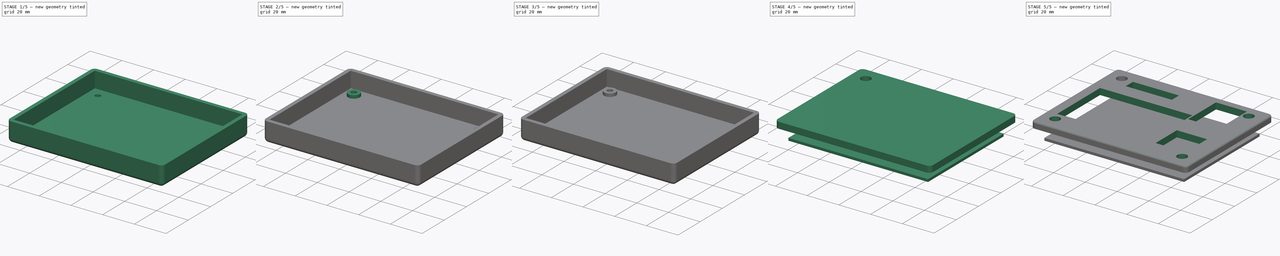
[diagram: build sequence overview — one tinted view per stage of 5, left to right]
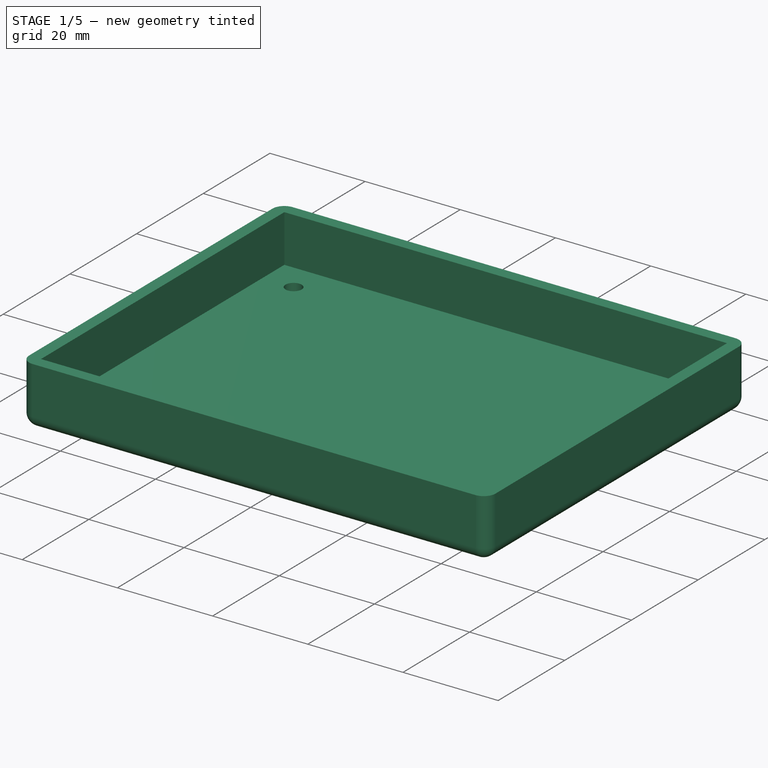
[diagram: stage 1 of 5 — iso view after this stage's code; geometry added in this stage tinted green]
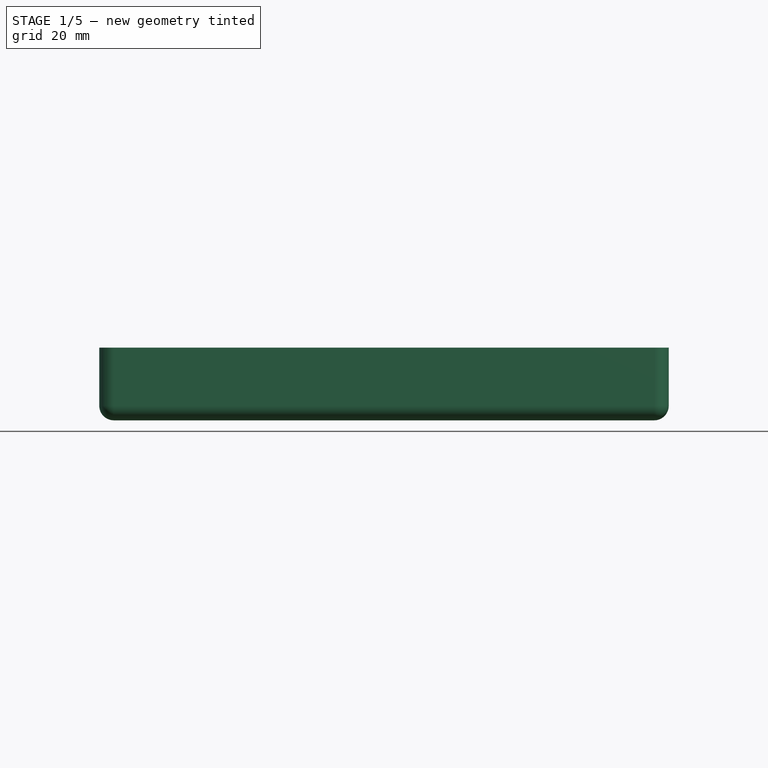
[diagram: stage 1 of 5 — front view after this stage's code; geometry added in this stage tinted green]
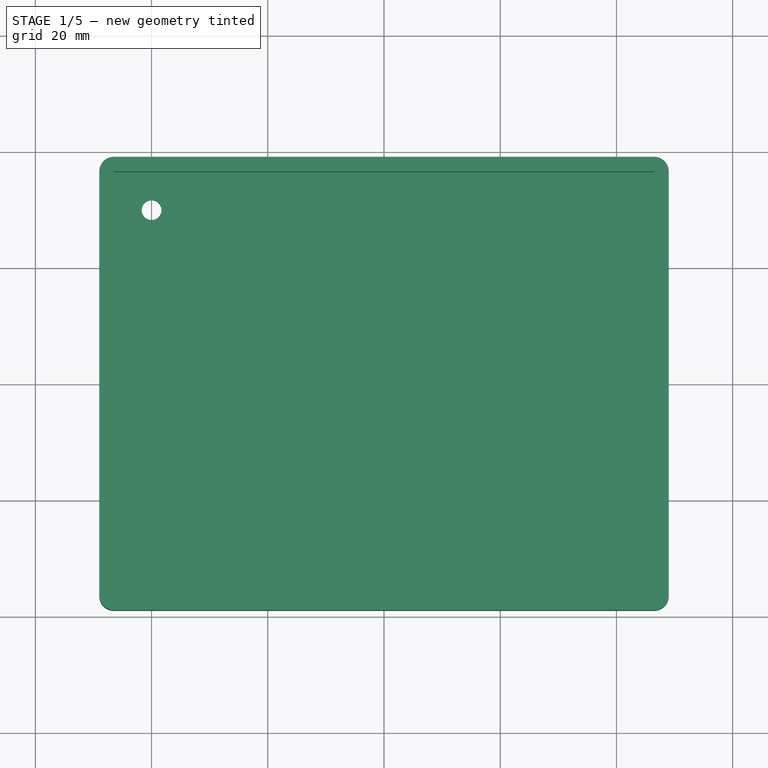
[diagram: stage 1 of 5 — top view after this stage's code; geometry added in this stage tinted green]
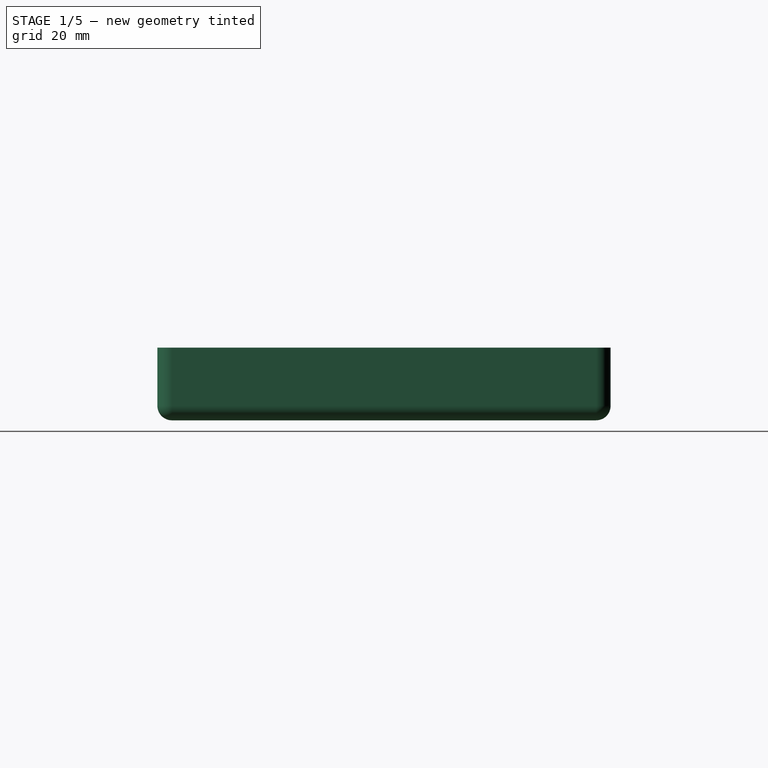
[diagram: stage 1 of 5 — right view after this stage's code; geometry added in this stage tinted green]
FCSTD DOCUMENT  (FreeCAD 0.20R)
Label: oakpad
License: All rights reserved
LicenseURL: http://en.wikipedia.org/wiki/All_rights_reserved
objects: Sketcher::SketchObject×9, PartDesign::Mirrored×8, PartDesign::Pad×5, PartDesign::MultiTransform×4, PartDesign::ShapeBinder×4, PartDesign::Body×3, PartDesign::Hole×2, PartDesign::Pocket×2, PartDesign::Thickness×1, PartDesign::Fillet×1
note: 50 computed .brp shape members not serialized (recipe doc carries the construction recipe); baked Part::Feature solids carry a one-line shape summary decoded from their .brp

FEATURE [Sketcher::SketchObject] Sketch
  FullyConstrained = true
  MapMode = 5
  Support = -> [XY_Plane]
  sketch-geometry (4):
    g0: LineSegment StartX=-44 StartY=34 StartZ=0 EndX=44 EndY=34 EndZ=0
    g1: LineSegment StartX=44 StartY=34 StartZ=0 EndX=44 EndY=-34 EndZ=0
    g2: LineSegment StartX=44 StartY=-34 StartZ=0 EndX=-44 EndY=-34 EndZ=0
    g3: LineSegment StartX=-44 StartY=-34 StartZ=0 EndX=-44 EndY=34 EndZ=0
  constraints (11):
    c: Coincident(g0,g1)
    c: Coincident(g1,g2)
    c: Coincident(g2,g3)
    c: Coincident(g3,g0)
    c: Horizontal(g0)
    c: Horizontal(g2)
    c: Vertical(g1)
    c: Vertical(g3)
    c: DistanceX(g0,g0) = 88
    c: DistanceY(g3,g3) = 68
    c: Symmetric(g0,g1,g-1)
FEATURE [Sketcher::SketchObject] Sketch001
  ExternalGeometry = -> [Sketch]
  FullyConstrained = true
  MapMode = 5
  Support = -> [XY_Plane]
  sketch-geometry (4):
    g0: LineSegment StartX=-46.5 StartY=36.5 StartZ=0 EndX=46.5 EndY=36.5 EndZ=0
    g1: LineSegment StartX=46.5 StartY=36.5 StartZ=0 EndX=46.5 EndY=-36.5 EndZ=0
    g2: LineSegment StartX=46.5 StartY=-36.5 StartZ=0 EndX=-46.5 EndY=-36.5 EndZ=0
    g3: LineSegment StartX=-46.5 StartY=-36.5 StartZ=0 EndX=-46.5 EndY=36.5 EndZ=0
  constraints (11):
    c: Coincident(g0,g1)
    c: Coincident(g1,g2)
    c: Coincident(g2,g3)
    c: Coincident(g3,g0)
    c: Horizontal(g0)
    c: Horizontal(g2)
    c: Vertical(g1)
    c: Vertical(g3)
    c: DistanceY(g-4,g0) = 2.5
    c: DistanceX(g2,g-6) = 2.5
    c: Symmetric(g0,g1,g-1)
FEATURE [PartDesign::Pad] Pad
  Direction = (0,0,1)
  Length = 10
  Length2 = 10
  Profile = -> Sketch001
  ReferenceAxis = -> Sketch001 [N_Axis]
  Type = 0
FEATURE [PartDesign::Thickness] Thickness
  Base = -> Pad [Face6]
  BaseFeature = -> Pad
  Intersection = false
  Join = 0
  Mode = 0
  SupportTransform = false
  Value = 2.5
FEATURE [Sketcher::SketchObject] Sketch002
  ExternalGeometry = -> [Sketch]
  FullyConstrained = true
  MapMode = 5
  Support = -> [XY_Plane]
  sketch-geometry (2):
    g0: Circle CenterX=-40 CenterY=30 CenterZ=0 NormalX=0 NormalY=0 NormalZ=1 AngleXU=0 Radius=1
    g1: GeomPoint X=-40 Y=30 Z=0
  constraints (4):
    c: Diameter(g0) = 2
    c: DistanceY(g0,g-4) = 4
    c: DistanceX(g-4,g0) = 4
    c: Coincident(g1,g0)
FEATURE [PartDesign::Hole] Hole
  BaseFeature = -> Thickness
  CustomThreadClearance = 0
  Depth = 25
  DepthType = 0
  Diameter = 3.4
  DrillForDepth = false
  DrillPoint = 1
  DrillPointAngle = 118
  HoleCutCountersinkAngle = 90
  HoleCutCustomValues = false
  HoleCutDepth = 0
  HoleCutDiameter = 6.1
  HoleCutType = 0
  ModelThread = false
  Profile = -> Sketch002
  Tapered = false
  TaperedAngle = 90
  ThreadClass = 0
  ThreadDepth = 25
  ThreadDepthType = 0
  ThreadDirection = 0
  ThreadFit = 0
  ThreadSize = 9
  ThreadType = 1
  Threaded = false
  UseCustomThreadClearance = false
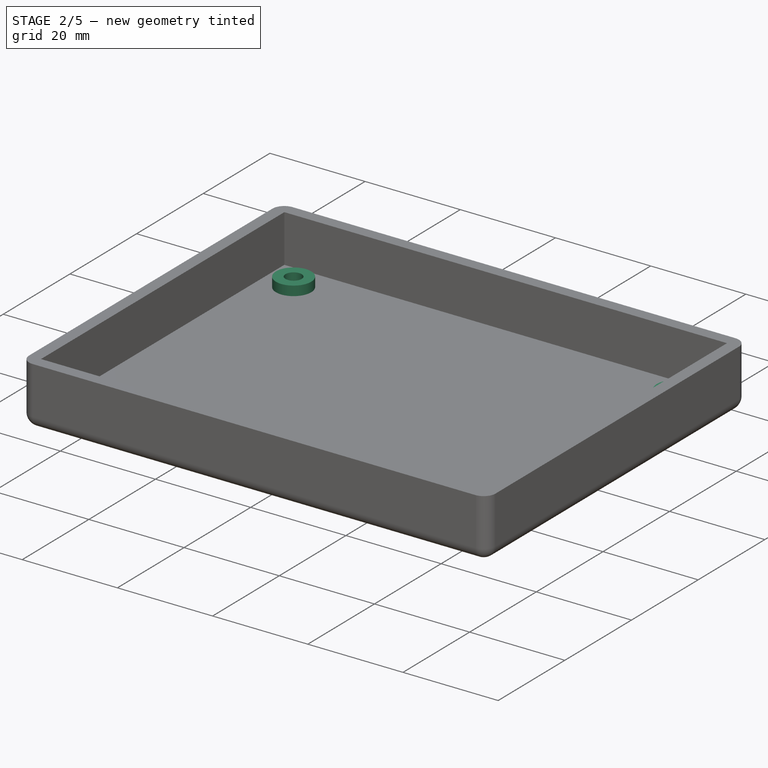
[diagram: stage 2 of 5 — iso view after this stage's code; geometry added in this stage tinted green]
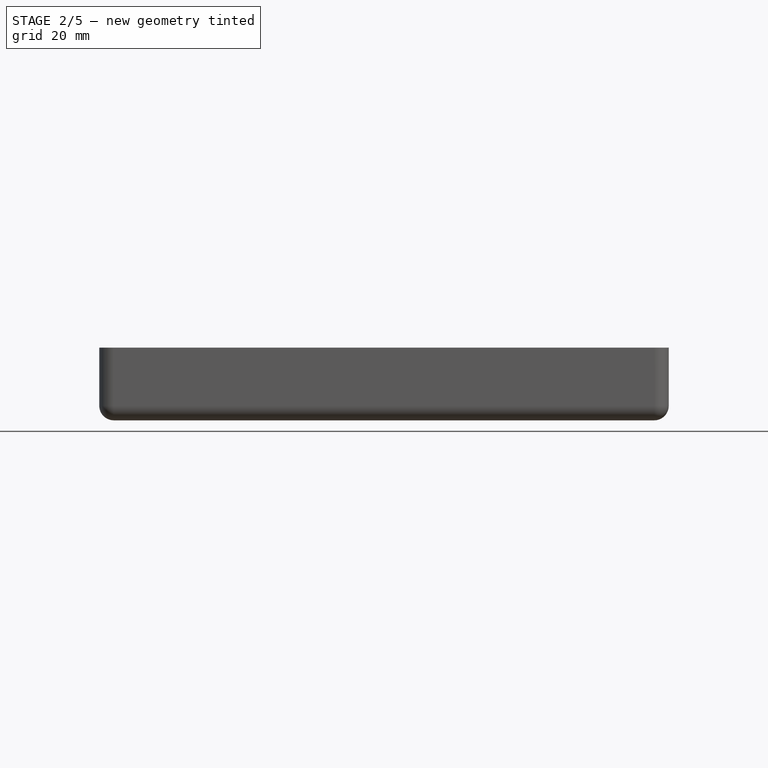
[diagram: stage 2 of 5 — front view after this stage's code; geometry added in this stage tinted green]
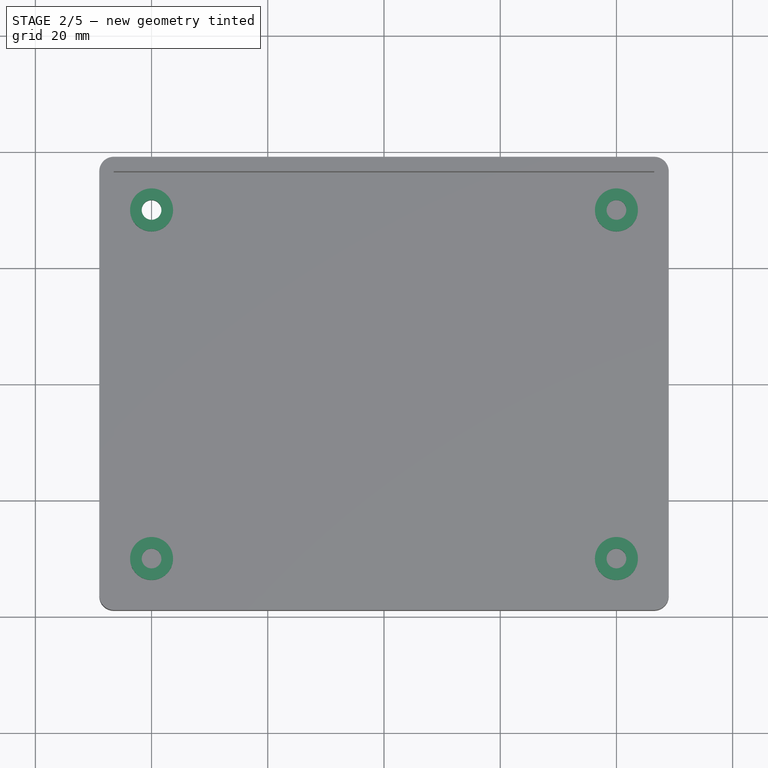
[diagram: stage 2 of 5 — top view after this stage's code; geometry added in this stage tinted green]
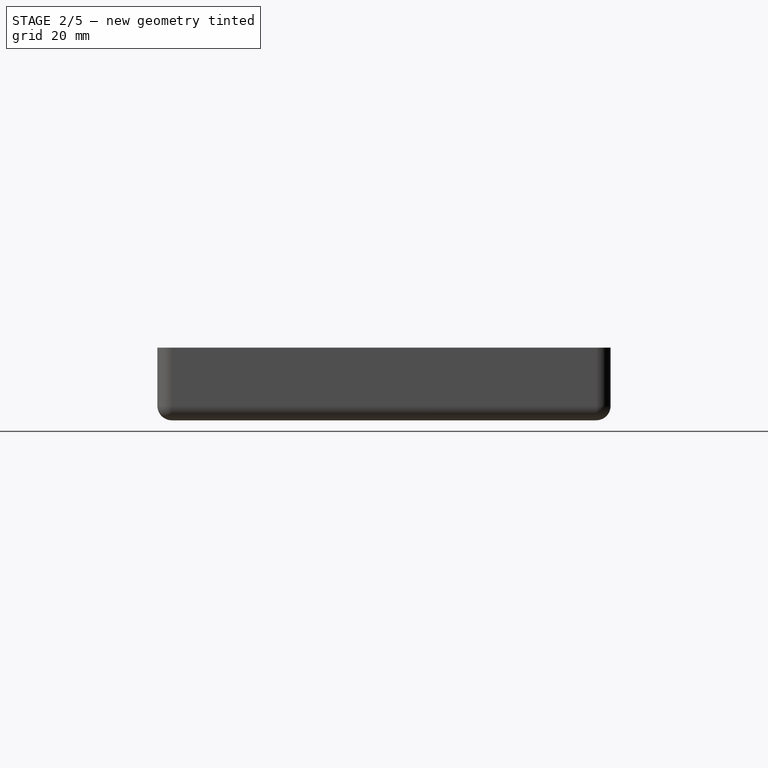
[diagram: stage 2 of 5 — right view after this stage's code; geometry added in this stage tinted green]
FEATURE [Sketcher::SketchObject] Sketch003
  ExternalGeometry = -> [Hole]
  FullyConstrained = true
  MapMode = 5
  Support = -> [XY_Plane]
  sketch-geometry (4):
    g0: Circle CenterX=-40 CenterY=30 CenterZ=0 NormalX=0 NormalY=0 NormalZ=1 AngleXU=0 Radius=3.7
    g1: Circle CenterX=-40 CenterY=30 CenterZ=0 NormalX=0 NormalY=0 NormalZ=1 AngleXU=0 Radius=1.7
    g2: GeomPoint X=-40 Y=31.7 Z=0
    g3: GeomPoint X=-40 Y=33.7 Z=0
  constraints (8):
    c: Coincident(g0,g-3)
    c: Coincident(g1,g0)
    c: Equal(g1,g-3)
    c: PointOnObject(g2,g1)
    c: PointOnObject(g3,g0)
    c: Vertical(g3,g2)
    c: Vertical(g2,g0)
    c: DistanceY(g2,g3) = 2
FEATURE [PartDesign::Pad] Pad001
  BaseFeature = -> Hole
  Direction = (0,0,1)
  Length = 2
  Length2 = 10
  Profile = -> Sketch003
  ReferenceAxis = -> Sketch003 [N_Axis]
  Type = 0
FEATURE [PartDesign::Mirrored] Mirrored
  MirrorPlane = -> Sketch003 [V_Axis]
FEATURE [PartDesign::Mirrored] Mirrored001
  MirrorPlane = -> Sketch003 [H_Axis]
FEATURE [PartDesign::MultiTransform] MultiTransform
  BaseFeature = -> Pad001
  Originals = -> [Pad001]
  Transformations = -> [Mirrored,Mirrored001]
FEATURE [Sketcher::SketchObject] Sketch005
  ExternalGeometry = -> [MultiTransform]
  FullyConstrained = true
  MapMode = 5
  Support = -> [XY_Plane]
  sketch-geometry (1):
    g0: Circle CenterX=-40 CenterY=30 CenterZ=0 NormalX=0 NormalY=0 NormalZ=1 AngleXU=0 Radius=1.7
  constraints (2):
    c: Coincident(g0,g-3)
    c: Equal(g-3,g0)
FEATURE [PartDesign::Pocket] Pocket
  BaseFeature = -> MultiTransform
  Direction = (0,0,-1)
  Length = 5
  Length2 = 5
  Profile = -> Sketch005
  ReferenceAxis = -> Sketch005 [N_Axis]
  Type = 1
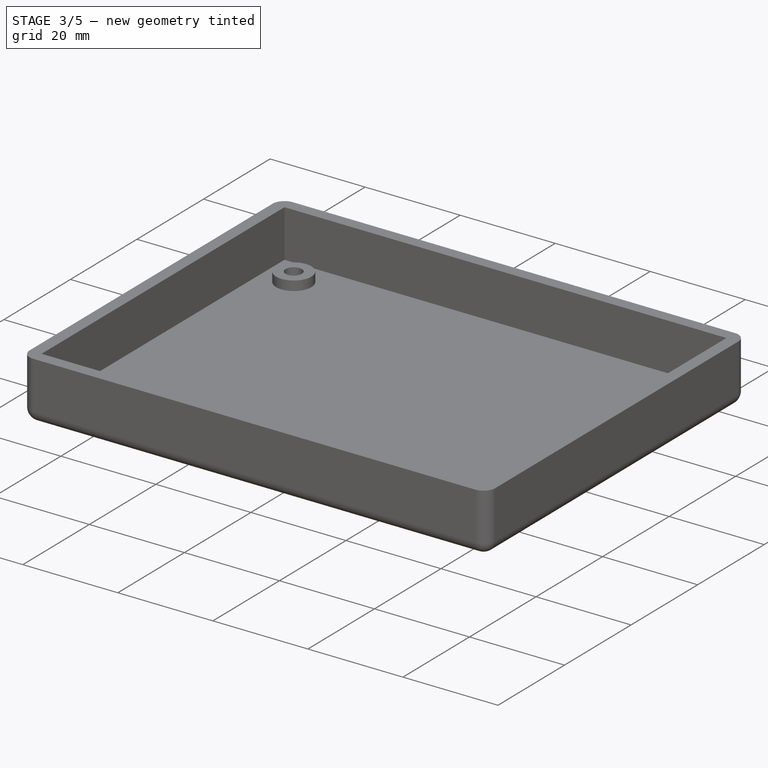
[diagram: stage 3 of 5 — iso view after this stage's code; geometry added in this stage tinted green]
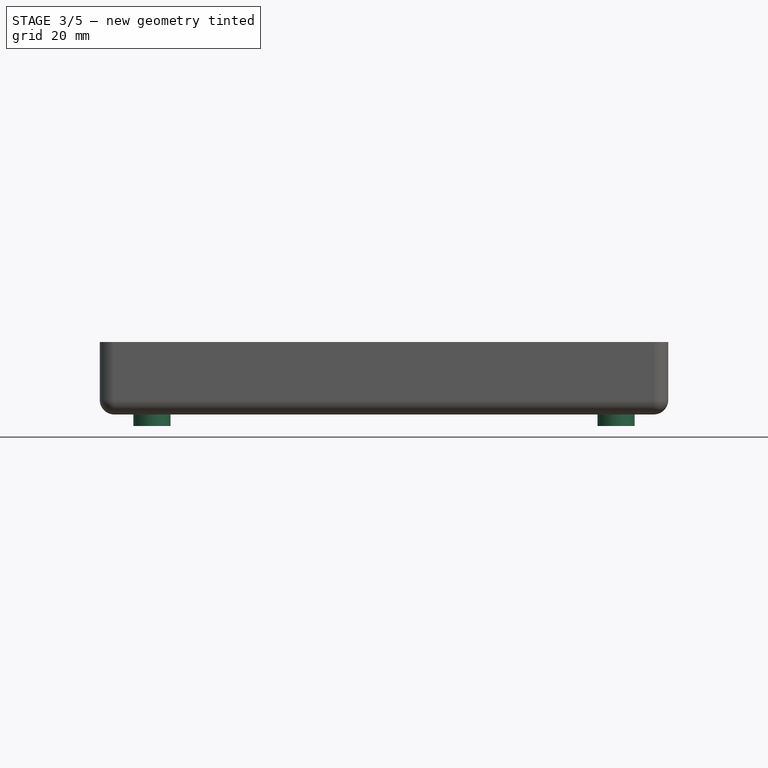
[diagram: stage 3 of 5 — front view after this stage's code; geometry added in this stage tinted green]
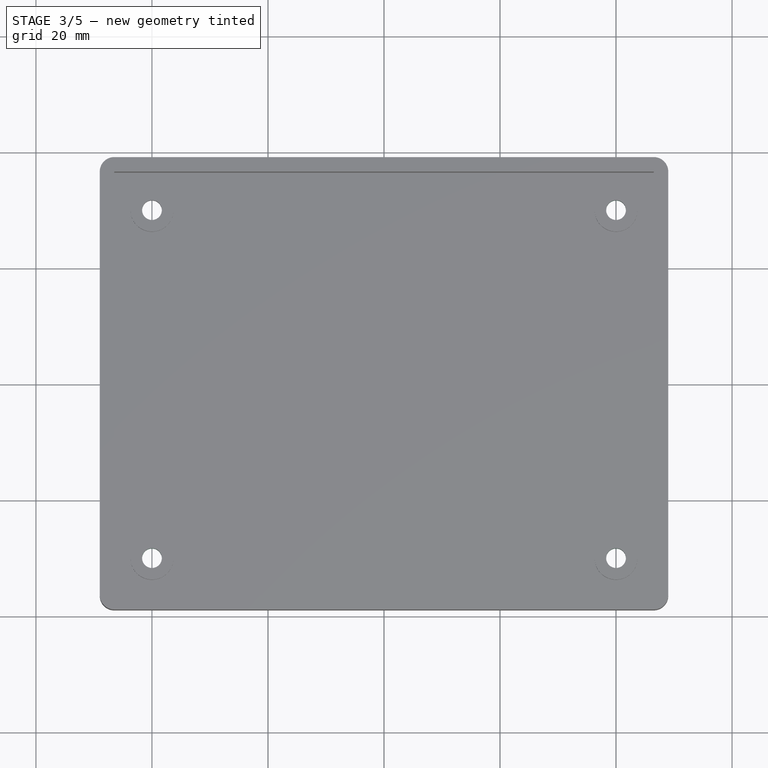
[diagram: stage 3 of 5 — top view after this stage's code; geometry added in this stage tinted green]
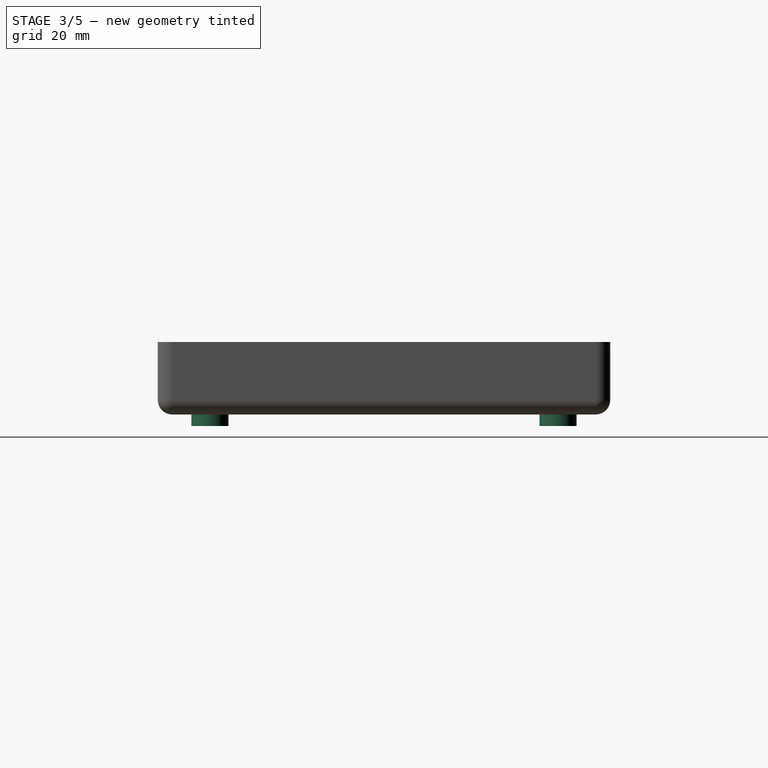
[diagram: stage 3 of 5 — right view after this stage's code; geometry added in this stage tinted green]
FEATURE [PartDesign::Mirrored] Mirrored004
  MirrorPlane = -> Sketch005 [V_Axis]
FEATURE [PartDesign::Mirrored] Mirrored005
  MirrorPlane = -> Sketch005 [H_Axis]
FEATURE [PartDesign::MultiTransform] MultiTransform002
  BaseFeature = -> Pocket
  Originals = -> [Pocket]
  Transformations = -> [Mirrored004,Mirrored005]
FEATURE [Sketcher::SketchObject] Sketch006
  ExternalGeometry = -> [MultiTransform002]
  FullyConstrained = true
  MapMode = 5
  Placement = pos=(0,0,-2.5) rot=(1,0,0;3.14159rad)
  Support = -> [MultiTransform002]
  sketch-geometry (5):
    g0: Circle CenterX=-40 CenterY=30 CenterZ=0 NormalX=0 NormalY=0 NormalZ=1 AngleXU=0 Radius=2.7
    g1: Circle CenterX=-40 CenterY=30 CenterZ=0 NormalX=0 NormalY=0 NormalZ=1 AngleXU=0 Radius=3.2
    g2: GeomPoint X=-40 Y=32.7 Z=0
    g3: GeomPoint X=-40 Y=33.2 Z=0
    g4: GeomPoint X=-40 Y=31.7 Z=0
  constraints (10):
    c: Coincident(g0,g-3)
    c: Coincident(g1,g0)
    c: PointOnObject(g2,g0)
    c: PointOnObject(g3,g1)
    c: PointOnObject(g4,g-3)
    c: Vertical(g0,g4)
    c: Vertical(g4,g2)
    c: Vertical(g2,g3)
    c: Distance(g2,g4) = 1
    c: Distance(g2,g3) = 0.5
FEATURE [PartDesign::Pad] Pad003
  BaseFeature = -> MultiTransform002
  Direction = (0,0,-1)
  Length = 2
  Length2 = 10
  Profile = -> Sketch006
  ReferenceAxis = -> Sketch006 [N_Axis]
  Type = 0
FEATURE [PartDesign::Mirrored] Mirrored006
  MirrorPlane = -> Sketch006 [V_Axis]
FEATURE [PartDesign::Mirrored] Mirrored007
  MirrorPlane = -> Sketch006 [H_Axis]
FEATURE [PartDesign::MultiTransform] MultiTransform003
  BaseFeature = -> Pad003
  Originals = -> [Pad003]
  Transformations = -> [Mirrored006,Mirrored007]
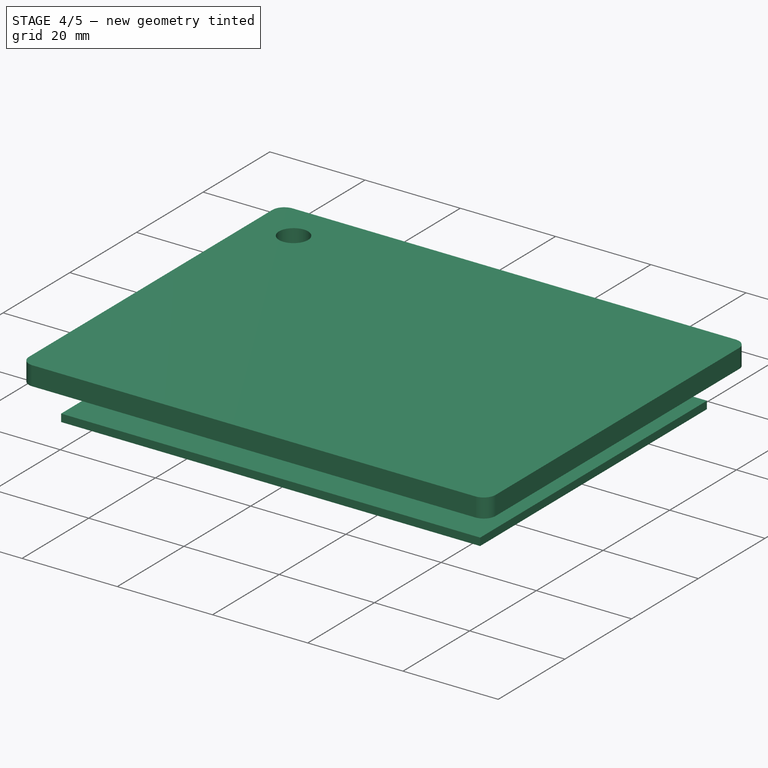
[diagram: stage 4 of 5 — iso view after this stage's code; geometry added in this stage tinted green]
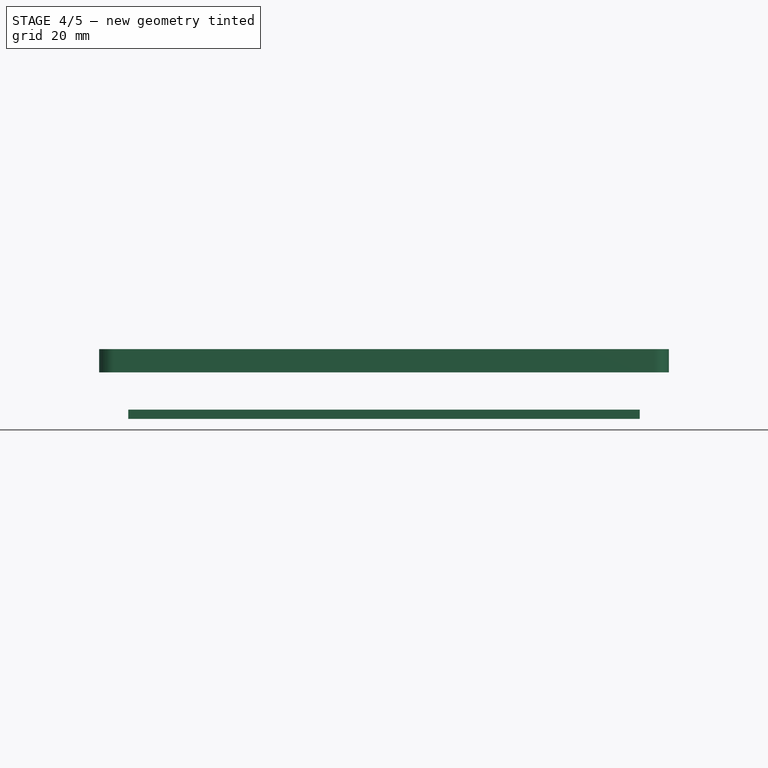
[diagram: stage 4 of 5 — front view after this stage's code; geometry added in this stage tinted green]
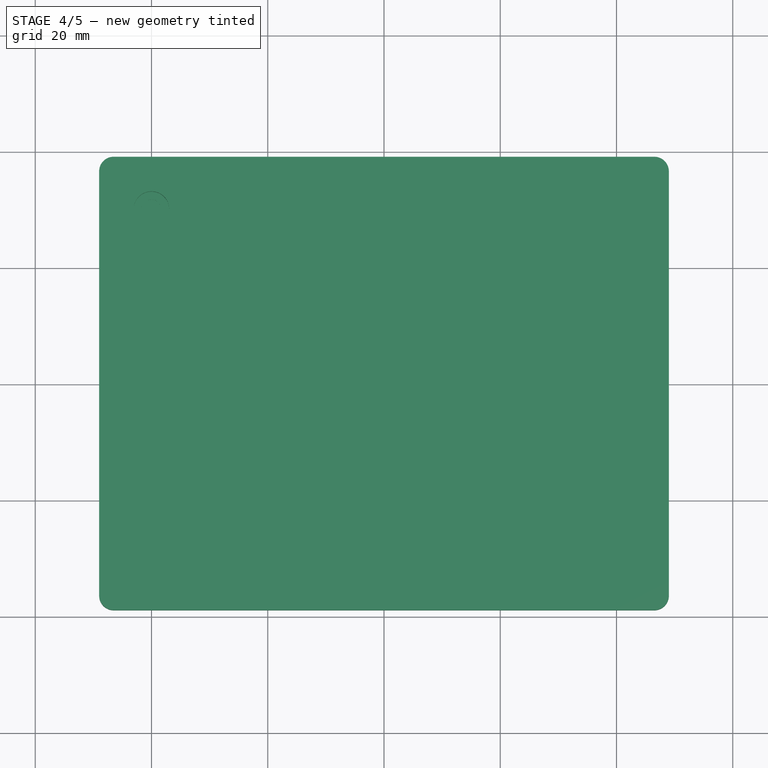
[diagram: stage 4 of 5 — top view after this stage's code; geometry added in this stage tinted green]
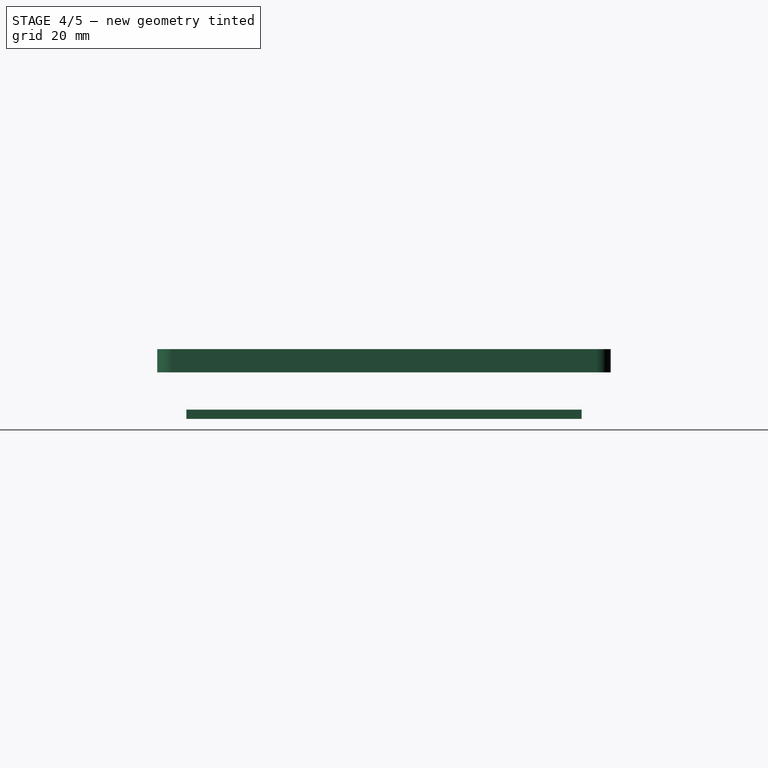
[diagram: stage 4 of 5 — right view after this stage's code; geometry added in this stage tinted green]
FEATURE [PartDesign::ShapeBinder] ShapeBinder
  Support = -> [MultiTransform]
  TraceSupport = false
FEATURE [PartDesign::Pad] Pad002
  Direction = (0,0,1)
  Length = 4
  Length2 = 10
  Profile = -> ShapeBinder
  Type = 0
FEATURE [PartDesign::ShapeBinder] ShapeBinder001
  Support = -> [Sketch]
  TraceSupport = false
FEATURE [Sketcher::SketchObject] Sketch004
  ExternalGeometry = -> [ShapeBinder001]
  FullyConstrained = false
  MapMode = 5
  Placement = pos=(0,0,14) rot=(0,0,1;0rad)
  Support = -> [Pad002]
  sketch-geometry (1):
    g0: Circle CenterX=-40 CenterY=30 CenterZ=0 NormalX=0 NormalY=0 NormalZ=1 AngleXU=0 Radius=2.27254
  constraints (2):
    c: DistanceY(g0,g-4) = 4
    c: DistanceX(g-4,g0) = 4
FEATURE [PartDesign::Hole] Hole001
  BaseFeature = -> Pad002
  CustomThreadClearance = 0
  Depth = 244.629
  DepthType = 1
  Diameter = 3.4
  DrillForDepth = false
  DrillPoint = 0
  DrillPointAngle = 118
  HoleCutCountersinkAngle = 90
  HoleCutCustomValues = false
  HoleCutDepth = 3.4
  HoleCutDiameter = 6.1
  HoleCutType = 1
  ModelThread = false
  Profile = -> Sketch004
  Tapered = false
  TaperedAngle = 90
  ThreadClass = 0
  ThreadDepth = 244.629
  ThreadDepthType = 0
  ThreadDirection = 0
  ThreadFit = 0
  ThreadSize = 9
  ThreadType = 1
  Threaded = false
  UseCustomThreadClearance = false
FEATURE [PartDesign::Body] Body001  label="Cover"
  Group = -> [ShapeBinder,Pad002,ShapeBinder001,Sketch004,Hole001,MultiTransform001,Mirrored002,Mirrored003,Sketch007,Pocket001,Fillet]
  Origin = -> Origin001
  Tip = -> Fillet
FEATURE [PartDesign::ShapeBinder] ShapeBinder002
  Support = -> [Sketch]
  TraceSupport = false
FEATURE [PartDesign::ShapeBinder] ReferenceMultiTransform003
  Placement = pos=(0,0,2) rot=(0,0,1;0rad)
  Support = -> [MultiTransform003]
  TraceSupport = false
FEATURE [Sketcher::SketchObject] Sketch008
  ExternalGeometry = -> [ShapeBinder002]
  FullyConstrained = true
  MapMode = 5
  Placement = pos=(0,0,2) rot=(0,0,1;0rad)
  Support = -> [ReferenceMultiTransform003]
  sketch-geometry (4):
    g0: LineSegment StartX=-44 StartY=34 StartZ=0 EndX=44 EndY=34 EndZ=0
    g1: LineSegment StartX=44 StartY=34 StartZ=0 EndX=44 EndY=-34 EndZ=0
    g2: LineSegment StartX=44 StartY=-34 StartZ=0 EndX=-44 EndY=-34 EndZ=0
    g3: LineSegment StartX=-44 StartY=-34 StartZ=0 EndX=-44 EndY=34 EndZ=0
  constraints (10):
    c: Coincident(g0,g1)
    c: Coincident(g1,g2)
    c: Coincident(g2,g3)
    c: Coincident(g3,g0)
    c: Horizontal(g0)
    c: Horizontal(g2)
    c: Vertical(g1)
    c: Vertical(g3)
    c: Coincident(g0,g-4)
    c: Coincident(g1,g-6)
FEATURE [PartDesign::Pad] Pad004
  Direction = (0,0,1)
  Length = 1.6
  Length2 = 10
  Placement = pos=(0,0,2) rot=(0,0,1;0rad)
  Profile = -> Sketch008
  ReferenceAxis = -> Sketch008 [N_Axis]
  Type = 0
FEATURE [PartDesign::Body] Body002  label="PCB"
  Group = -> [ShapeBinder002,ReferenceMultiTransform003,Sketch008,Pad004]
  Origin = -> Origin002
  Tip = -> Pad004
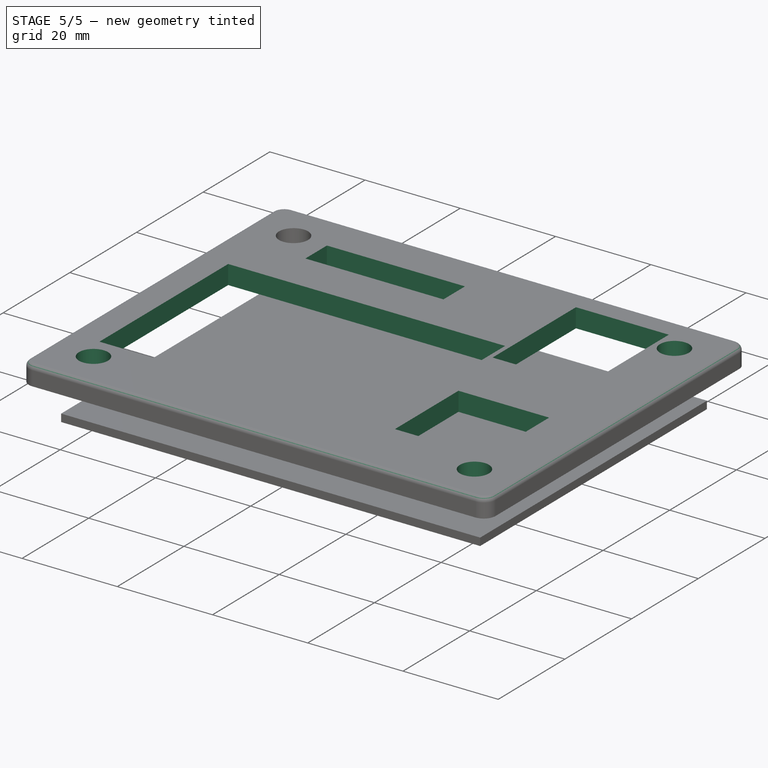
[diagram: stage 5 of 5 — iso view after this stage's code; geometry added in this stage tinted green]
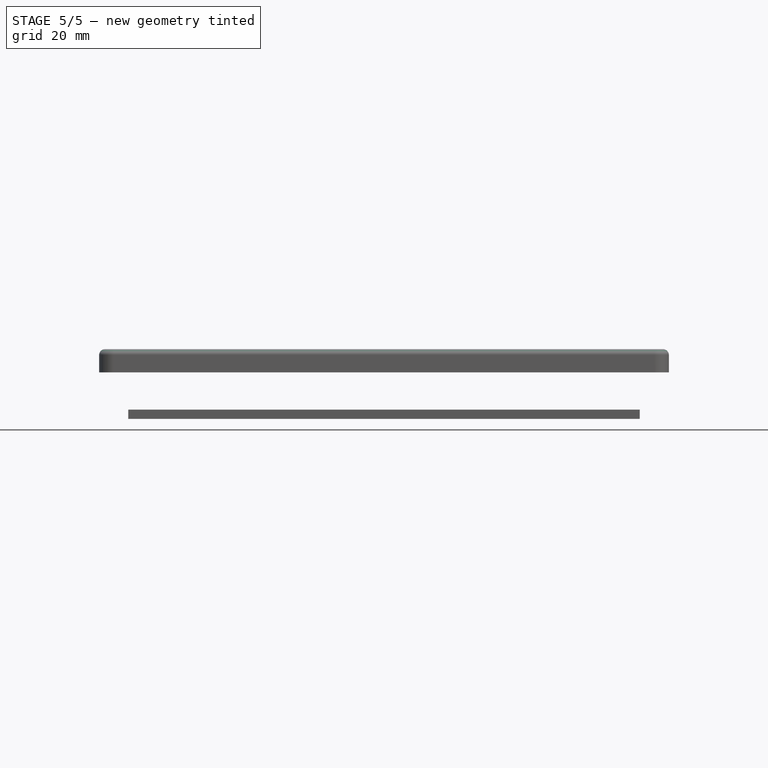
[diagram: stage 5 of 5 — front view after this stage's code; geometry added in this stage tinted green]
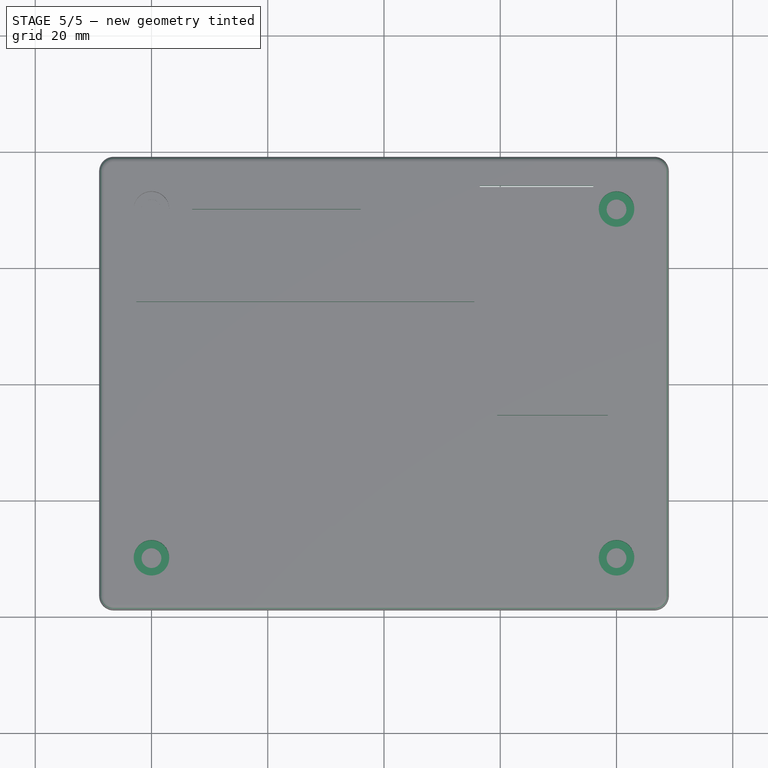
[diagram: stage 5 of 5 — top view after this stage's code; geometry added in this stage tinted green]
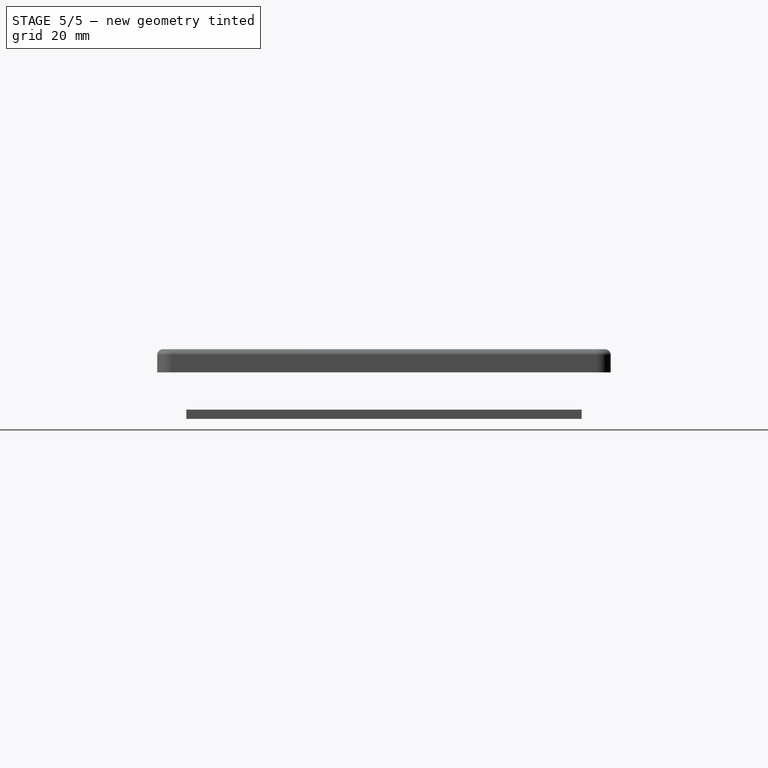
[diagram: stage 5 of 5 — right view after this stage's code; geometry added in this stage tinted green]
FEATURE [PartDesign::Mirrored] Mirrored002
  MirrorPlane = -> Sketch004 [V_Axis]
FEATURE [PartDesign::Mirrored] Mirrored003
  MirrorPlane = -> Sketch004 [H_Axis]
FEATURE [PartDesign::MultiTransform] MultiTransform001
  BaseFeature = -> Hole001
  Originals = -> [Hole001]
  Transformations = -> [Mirrored002,Mirrored003]
FEATURE [PartDesign::Body] Body  label="Base"
  Group = -> [Sketch,Sketch001,Pad,Thickness,Sketch002,Hole,Sketch003,Pad001,MultiTransform,Mirrored,Mirrored001,Sketch005,Pocket,MultiTransform002,Mirrored004,Mirrored005,Sketch006,Pad003,MultiTransform003,Mirrored006,Mirrored007]
  Origin = -> Origin
  Tip = -> MultiTransform003
FEATURE [Sketcher::SketchObject] Sketch007
  ExternalGeometry = -> [ShapeBinder001]
  FullyConstrained = true
  MapMode = 5
  Placement = pos=(0,0,14) rot=(0,0,1;0rad)
  Support = -> [MultiTransform001]
  sketch-geometry (16):
    g0: LineSegment StartX=-42.6 StartY=-24.5 StartZ=0 EndX=15.55 EndY=-24.5 EndZ=0
    g1: LineSegment StartX=15.55 StartY=-24.5 StartZ=0 EndX=15.55 EndY=14.1 EndZ=0
    g2: LineSegment StartX=15.55 StartY=14.1 StartZ=0 EndX=-42.6 EndY=14.1 EndZ=0
    g3: LineSegment StartX=-42.6 StartY=14.1 StartZ=0 EndX=-42.6 EndY=-24.5 EndZ=0
    g4: LineSegment StartX=19.45 StartY=-5.45 StartZ=0 EndX=38.5 EndY=-5.45 EndZ=0
    g5: LineSegment StartX=38.5 StartY=-5.45 StartZ=0 EndX=38.5 EndY=-24.5 EndZ=0
    g6: LineSegment StartX=38.5 StartY=-24.5 StartZ=0 EndX=19.45 EndY=-24.5 EndZ=0
    g7: LineSegment StartX=19.45 StartY=-24.5 StartZ=0 EndX=19.45 EndY=-5.45 EndZ=0
    g8: LineSegment StartX=16.5 StartY=34 StartZ=0 EndX=36 EndY=34 EndZ=0
    g9: LineSegment StartX=36 StartY=34 StartZ=0 EndX=36 EndY=9 EndZ=0
    g10: LineSegment StartX=36 StartY=9 StartZ=0 EndX=16.5 EndY=9 EndZ=0
    g11: LineSegment StartX=16.5 StartY=9 StartZ=0 EndX=16.5 EndY=34 EndZ=0
    g12: LineSegment StartX=-33 StartY=30 StartZ=0 EndX=-4 EndY=30 EndZ=0
    g13: LineSegment StartX=-4 StartY=30 StartZ=0 EndX=-4 EndY=23.55 EndZ=0
    g14: LineSegment StartX=-4 StartY=23.55 StartZ=0 EndX=-33 EndY=23.55 EndZ=0
    g15: LineSegment StartX=-33 StartY=23.55 StartZ=0 EndX=-33 EndY=30 EndZ=0
  constraints (48):
    c: Coincident(g0,g1)
    c: Coincident(g1,g2)
    c: Coincident(g2,g3)
    c: Coincident(g3,g0)
    c: Horizontal(g0)
    c: Horizontal(g2)
    c: Vertical(g1)
    c: Vertical(g3)
    c: DistanceX(g-5,g0) = 1.4
    c: DistanceY(g-5,g0) = 9.5
    c: DistanceX(g2,g2) = 58.15
    c: DistanceY(g1,g1) = 38.6
    c: Coincident(g4,g5)
    c: Coincident(g5,g6)
    c: Coincident(g6,g7)
    c: Coincident(g7,g4)
    c: Horizontal(g4)
    c: Horizontal(g6)
    c: Vertical(g5)
    c: Vertical(g7)
    c: DistanceX(g5,g-6) = 5.5
    c: DistanceY(g-6,g5) = 9.5
    c: DistanceX(g4,g4) = 19.05
    c: DistanceY(g5,g5) = 19.05
    c: Coincident(g8,g9)
    c: Coincident(g9,g10)
    c: Coincident(g10,g11)
    c: Coincident(g11,g8)
    c: Horizontal(g8)
    c: Horizontal(g10)
    c: Vertical(g9)
    c: Vertical(g11)
    c: DistanceX(g8,g8) = 19.5
    c: DistanceX(g9,g-6) = 8
    c: DistanceY(g8,g-6) = 0
    c: DistanceY(g11,g11) = 25
    c: Coincident(g12,g13)
    c: Coincident(g13,g14)
    c: Coincident(g14,g15)
    c: Coincident(g15,g12)
    c: Horizontal(g12)
    c: Horizontal(g14)
    c: Vertical(g13)
    c: Vertical(g15)
    c: DistanceX(g12,g12) = 29
    c: DistanceY(g13,g13) = 6.45
    c: DistanceX(g-4,g12) = 11
    c: DistanceY(g12,g-4) = 4
FEATURE [PartDesign::Pocket] Pocket001
  BaseFeature = -> MultiTransform001
  Direction = (0,0,-1)
  Length = 0
  Length2 = 5
  Profile = -> Sketch007
  ReferenceAxis = -> Sketch007 [N_Axis]
  Type = 2
FEATURE [PartDesign::Fillet] Fillet
  Base = -> Pocket001 [Edge36,Edge7,Edge4,Edge37,Edge10,Edge39,Edge40,Edge38]
  BaseFeature = -> Pocket001
  Radius = 1
  SupportTransform = false
  UseAllEdges = false
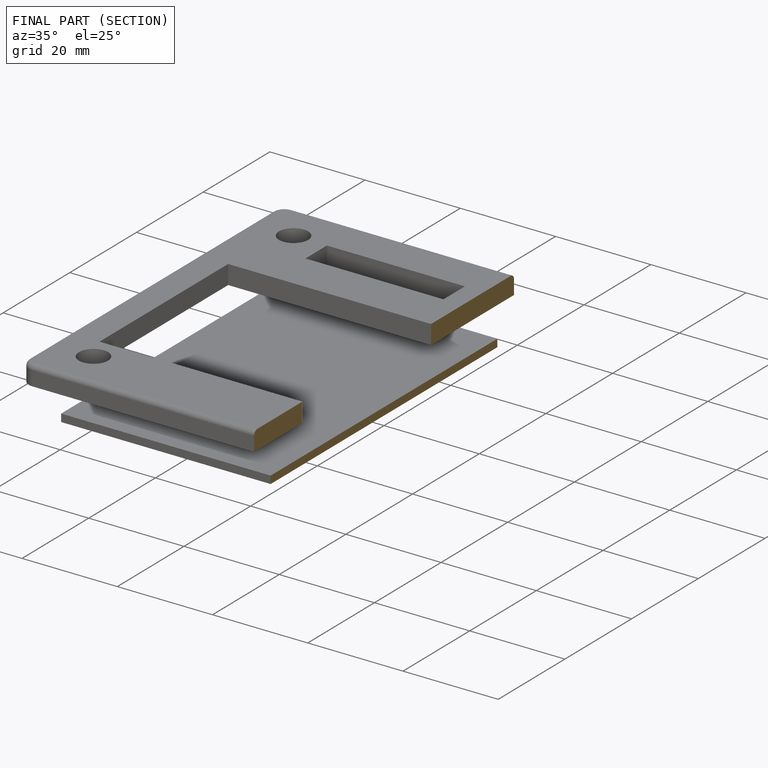
[diagram: finished part — half-section view (interior)]
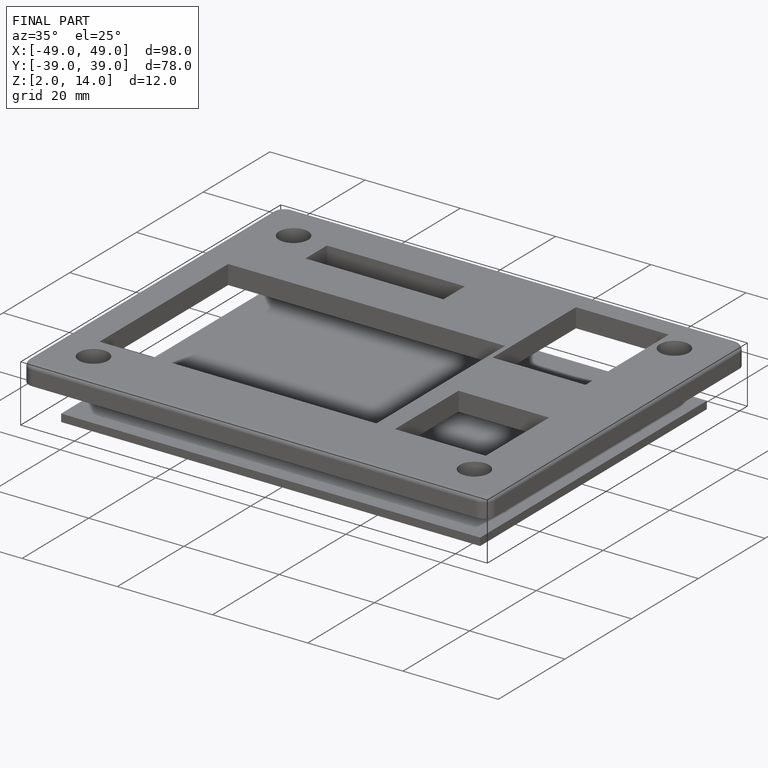
[diagram: finished part — iso view with bounding-box wireframe]
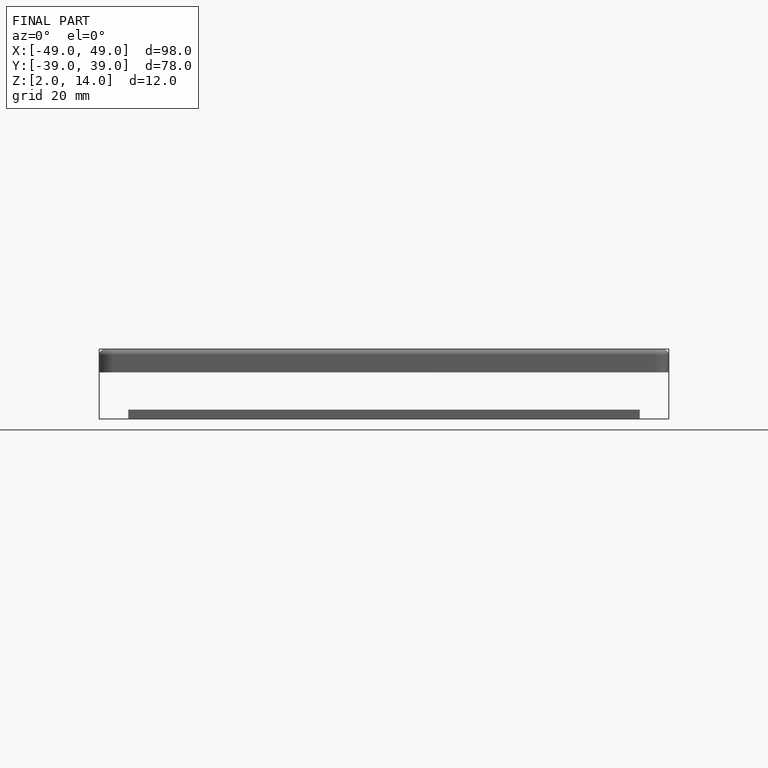
[diagram: finished part — front view with bounding-box wireframe]
